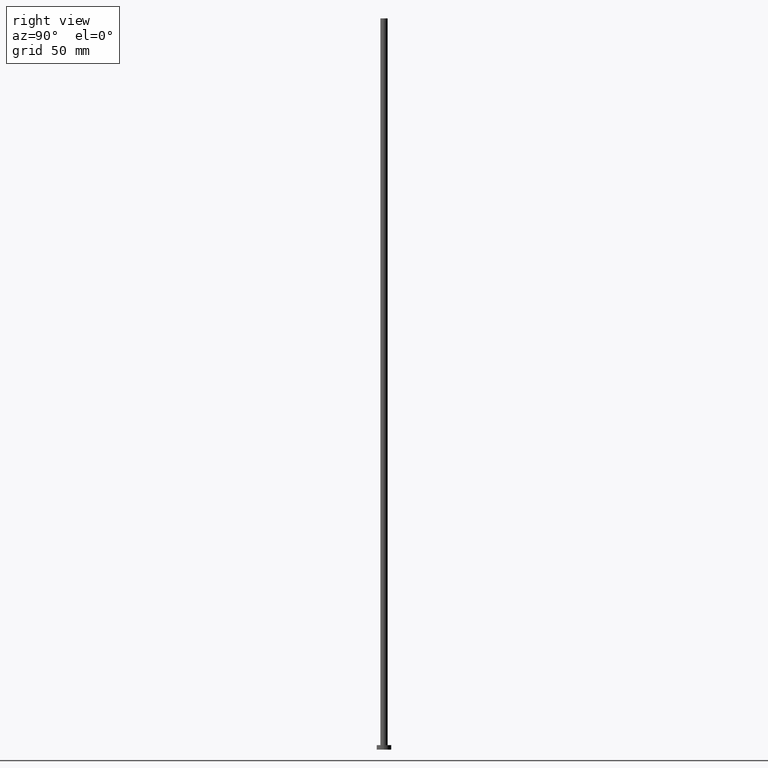
[diagram: clean part render]
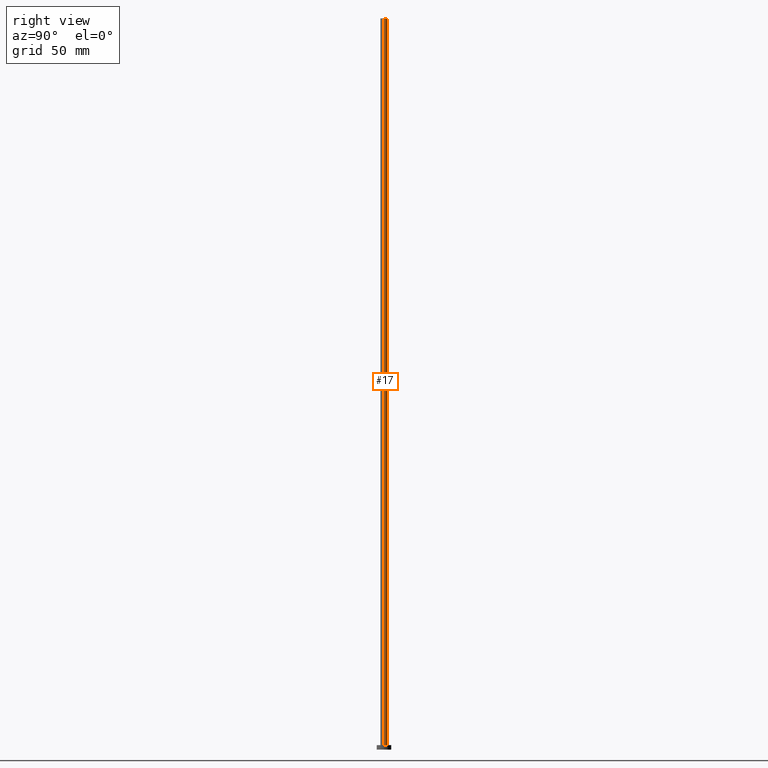
[diagram: same view with one face highlighted and labeled with its STEP entity id]
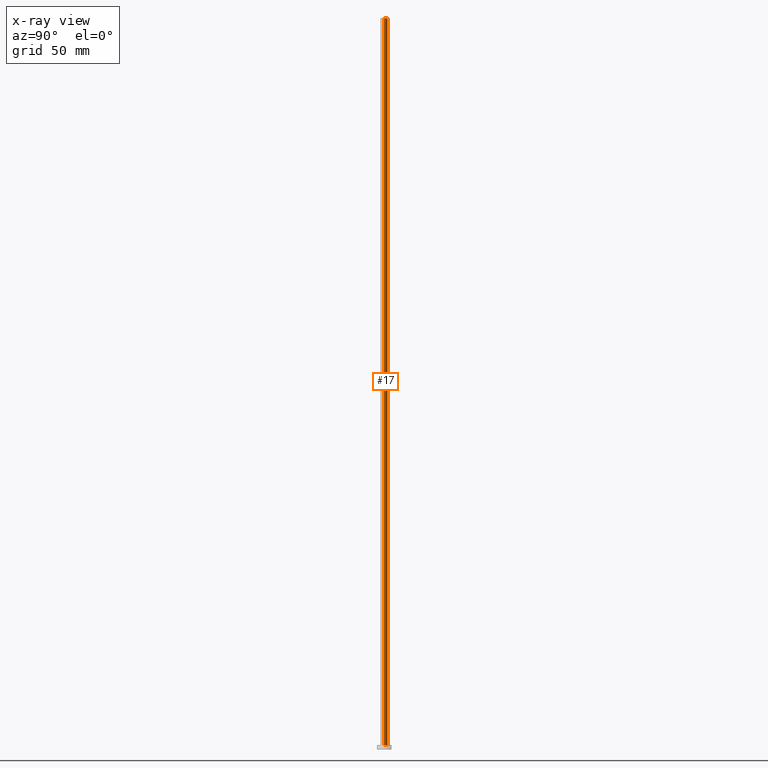
[diagram: x-ray of the same camera — body ghosted, the highlighted face saturated]
A machine part, right view. The second image highlights one B-rep face of the part: STEP entity #17.
The next image is the same camera in x-ray: the body ghosted, the highlighted face saturated — about 0% of this face is hidden behind the body in this view.
In plain terms, the highlighted cylindrical surface (edge-blend (fillet) strip) has radius 2.5 mm, axis along (-0, -0, -1).
Its self-contained STEP definition (entity closure, byte-faithful):
#3 = CARTESIAN_POINT ( 'NONE',  ( 2.500000000000000000, 3.061616997868382648E-16, 3.000000000000000000 ) ) ;
#7 = DIRECTION ( 'NONE',  ( -0.000000000000000000, -0.000000000000000000, -1.000000000000000000 ) ) ;
#10 = CIRCLE ( 'NONE', #118, 2.500000000000000000 ) ;
#15 = DIRECTION ( 'NONE',  ( 1.000000000000000000, 0.000000000000000000, 0.000000000000000000 ) ) ;
#17 = ADVANCED_FACE ( 'NONE', ( #157 ), #120, .T. ) ;
#19 = CARTESIAN_POINT ( 'NONE',  ( 0.000000000000000000, 0.000000000000000000, 3.000000000000000000 ) ) ;
#23 = EDGE_CURVE ( 'NONE', #83, #245, #62, .T. ) ;
#25 = CARTESIAN_POINT ( 'NONE',  ( -2.500000000000000000, 0.000000000000000000, 500.0000000000000000 ) ) ;
#33 = EDGE_CURVE ( 'NONE', #143, #67, #10, .T. ) ;
#56 = DIRECTION ( 'NONE',  ( -0.000000000000000000, -0.000000000000000000, -1.000000000000000000 ) ) ;
#62 = CIRCLE ( 'NONE', #132, 2.500000000000000000 ) ;
#66 = VECTOR ( 'NONE', #7, 1000.000000000000000 ) ;
#67 = VERTEX_POINT ( 'NONE', #25 ) ;
#83 = VERTEX_POINT ( 'NONE', #3 ) ;
#95 = ORIENTED_EDGE ( 'NONE', *, *, #33, .F. ) ;
#97 = DIRECTION ( 'NONE',  ( 1.000000000000000000, 0.000000000000000000, 0.000000000000000000 ) ) ;
#118 = AXIS2_PLACEMENT_3D ( 'NONE', #247, #158, #15 ) ;
#119 = VECTOR ( 'NONE', #56, 1000.000000000000000 ) ;
#120 = CYLINDRICAL_SURFACE ( 'NONE', #232, 2.500000000000000000 ) ;
#132 = AXIS2_PLACEMENT_3D ( 'NONE', #19, #188, #97 ) ;
#136 = CARTESIAN_POINT ( 'NONE',  ( 2.500000000000000000, 3.061616997868382648E-16, 500.0000000000000000 ) ) ;
#142 = EDGE_CURVE ( 'NONE', #143, #83, #243, .T. ) ;
#143 = VERTEX_POINT ( 'NONE', #200 ) ;
#157 = FACE_OUTER_BOUND ( 'NONE', #159, .T. ) ;
#158 = DIRECTION ( 'NONE',  ( 0.000000000000000000, 0.000000000000000000, 1.000000000000000000 ) ) ;
#159 = EDGE_LOOP ( 'NONE', ( #95, #186, #209, #161 ) ) ;
#160 = DIRECTION ( 'NONE',  ( -1.000000000000000000, 0.000000000000000000, 0.000000000000000000 ) ) ;
#161 = ORIENTED_EDGE ( 'NONE', *, *, #162, .F. ) ;
#162 = EDGE_CURVE ( 'NONE', #67, #245, #172, .T. ) ;
#172 = LINE ( 'NONE', #244, #119 ) ;
#186 = ORIENTED_EDGE ( 'NONE', *, *, #142, .T. ) ;
#188 = DIRECTION ( 'NONE',  ( 0.000000000000000000, 0.000000000000000000, 1.000000000000000000 ) ) ;
#200 = CARTESIAN_POINT ( 'NONE',  ( 2.500000000000000000, 3.061616997868382648E-16, 500.0000000000000000 ) ) ;
#209 = ORIENTED_EDGE ( 'NONE', *, *, #23, .T. ) ;
#210 = DIRECTION ( 'NONE',  ( -0.000000000000000000, -0.000000000000000000, -1.000000000000000000 ) ) ;
#223 = CARTESIAN_POINT ( 'NONE',  ( 0.000000000000000000, 0.000000000000000000, 500.0000000000000000 ) ) ;
#227 = CARTESIAN_POINT ( 'NONE',  ( -2.500000000000000000, 0.000000000000000000, 3.000000000000000000 ) ) ;
#232 = AXIS2_PLACEMENT_3D ( 'NONE', #223, #210, #160 ) ;
#243 = LINE ( 'NONE', #136, #66 ) ;
#244 = CARTESIAN_POINT ( 'NONE',  ( -2.500000000000000000, 0.000000000000000000, 500.0000000000000000 ) ) ;
#245 = VERTEX_POINT ( 'NONE', #227 ) ;
#247 = CARTESIAN_POINT ( 'NONE',  ( 0.000000000000000000, 0.000000000000000000, 500.0000000000000000 ) ) ;